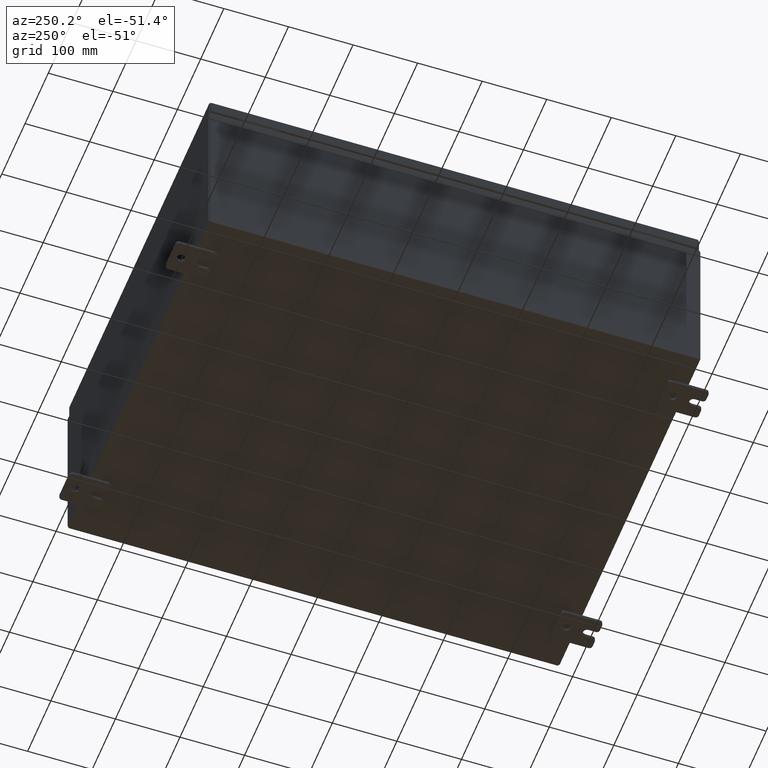
[diagram: clean part render]
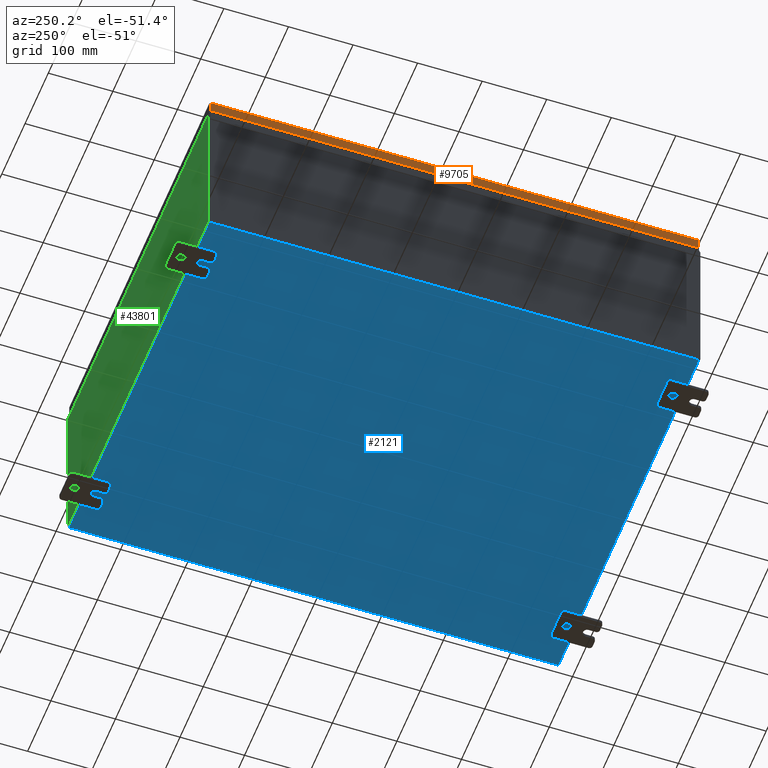
[diagram: same view with three faces highlighted in distinct colors, each labeled with its STEP entity id]
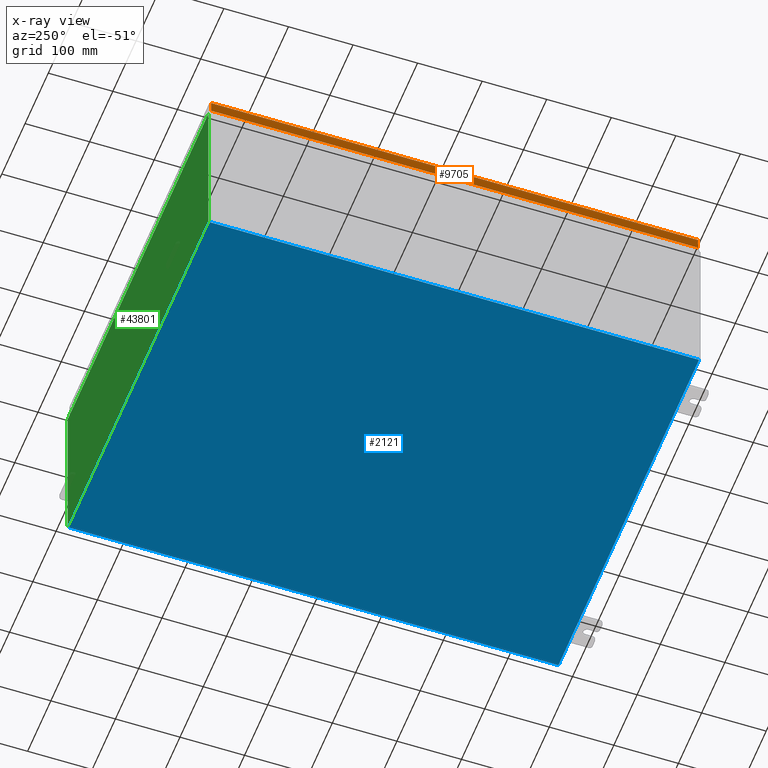
[diagram: x-ray of the same camera — body ghosted, the three highlighted faces saturated]
A machine part, auxiliary view with three faces highlighted in distinct colors.
The next image is the same camera in x-ray (body ghosted, the three faces saturated) — at least one of them is partly hidden behind the body in this view.
Their STEP definitions:

[orange] entity #9705 — the highlighted planar face has unit normal (1, 0, -0).
#177 = VECTOR ( 'NONE', #40609, 39.37007874015748100 ) ;
#3165 = PLANE ( 'NONE',  #16782 ) ;
#3431 = EDGE_CURVE ( 'NONE', #44436, #50850, #26492, .T. ) ;
#3952 = CARTESIAN_POINT ( 'NONE',  ( -11.93750000000000200, 14.84865786437627800, -0.7949999999999960400 ) ) ;
#5570 = EDGE_CURVE ( 'NONE', #30413, #61173, #8512, .T. ) ;
#8116 = CARTESIAN_POINT ( 'NONE',  ( -11.93750000000000000, -4.471249168696428000E-030, 3.648065030670395400E-014 ) ) ;
#8512 = LINE ( 'NONE', #45743, #20098 ) ;
#8625 = FACE_OUTER_BOUND ( 'NONE', #33522, .T. ) ;
#9705 = ADVANCED_FACE ( 'NONE', ( #8625 ), #3165, .F. ) ;
#10651 = VECTOR ( 'NONE', #25397, 39.37007874015748100 ) ;
#13075 = DIRECTION ( 'NONE',  ( -3.034122441942816500E-015, 0.0000000000000000000, -1.000000000000000000 ) ) ;
#16782 = AXIS2_PLACEMENT_3D ( 'NONE', #8116, #42757, #13075 ) ;
#17448 = ORIENTED_EDGE ( 'NONE', *, *, #3431, .F. ) ;
#18426 = CARTESIAN_POINT ( 'NONE',  ( -11.93750000000000000, 14.84865786437627100, -0.08770000000000004200 ) ) ;
#20098 = VECTOR ( 'NONE', #48598, 39.37007874015748100 ) ;
#23702 = VECTOR ( 'NONE', #40237, 39.37007874015748100 ) ;
#25397 = DIRECTION ( 'NONE',  ( -3.034122441942816500E-015, 6.982962677686265900E-015, -1.000000000000000000 ) ) ;
#25707 = ORIENTED_EDGE ( 'NONE', *, *, #56449, .F. ) ;
#26492 = LINE ( 'NONE', #26955, #177 ) ;
#26955 = CARTESIAN_POINT ( 'NONE',  ( -11.93750000000000000, -14.93749999999999500, -0.08770000000000004200 ) ) ;
#30413 = VERTEX_POINT ( 'NONE', #58043 ) ;
#33522 = EDGE_LOOP ( 'NONE', ( #17448, #57094, #56340, #25707 ) ) ;
#33952 = EDGE_CURVE ( 'NONE', #44436, #61173, #38445, .T. ) ;
#35254 = CARTESIAN_POINT ( 'NONE',  ( -11.93750000000000000, 14.84865786437627100, 1.401682739873761500E-013 ) ) ;
#37038 = LINE ( 'NONE', #49928, #10651 ) ;
#38445 = LINE ( 'NONE', #35254, #23702 ) ;
#40237 = DIRECTION ( 'NONE',  ( -3.034122441942816500E-015, 6.982962677686265900E-015, -1.000000000000000000 ) ) ;
#40609 = DIRECTION ( 'NONE',  ( 3.745549041839940000E-031, -1.000000000000000000, -1.104117517615176400E-045 ) ) ;
#42757 = DIRECTION ( 'NONE',  ( 1.000000000000000000, 3.745549041839939100E-031, -3.034122441942816500E-015 ) ) ;
#44436 = VERTEX_POINT ( 'NONE', #18426 ) ;
#45743 = CARTESIAN_POINT ( 'NONE',  ( -11.93750000000000200, -14.93749999999999500, -0.7949999999999997100 ) ) ;
#48598 = DIRECTION ( 'NONE',  ( 4.379057701015054300E-047, 1.000000000000000000, 1.234475243998914400E-016 ) ) ;
#49928 = CARTESIAN_POINT ( 'NONE',  ( -11.93750000000000000, -14.84865786437626400, -0.07469999999999976700 ) ) ;
#50282 = CARTESIAN_POINT ( 'NONE',  ( -11.93750000000000000, -14.84865786437626200, -0.08770000000000007000 ) ) ;
#50850 = VERTEX_POINT ( 'NONE', #50282 ) ;
#56340 = ORIENTED_EDGE ( 'NONE', *, *, #5570, .F. ) ;
#56449 = EDGE_CURVE ( 'NONE', #50850, #30413, #37038, .T. ) ;
#57094 = ORIENTED_EDGE ( 'NONE', *, *, #33952, .T. ) ;
#58043 = CARTESIAN_POINT ( 'NONE',  ( -11.93750000000000200, -14.84865786437626100, -0.7949999999999996000 ) ) ;
#61173 = VERTEX_POINT ( 'NONE', #3952 ) ;

[blue] entity #2121 — the highlighted planar face has unit normal (0, 0, -1).
#66 = DIRECTION ( 'NONE',  ( -1.000000000000000000, -0.0000000000000000000, -0.0000000000000000000 ) ) ;
#253 = PLANE ( 'NONE',  #13633 ) ;
#1280 = CARTESIAN_POINT ( 'NONE',  ( -11.91230000000000500, 14.92530000000000000, -0.07470000000000000300 ) ) ;
#1499 = VERTEX_POINT ( 'NONE', #60617 ) ;
#2121 = ADVANCED_FACE ( 'NONE', ( #41295 ), #253, .T. ) ;
#3544 = CARTESIAN_POINT ( 'NONE',  ( -11.91230000000000500, -14.92530000000000000, -0.07469999999999994700 ) ) ;
#4795 = CARTESIAN_POINT ( 'NONE',  ( -12.00000000000000500, 14.92530000000000000, -0.07470000000000000300 ) ) ;
#5411 = VECTOR ( 'NONE', #49906, 39.37007874015748100 ) ;
#5622 = EDGE_CURVE ( 'NONE', #60234, #1499, #44941, .T. ) ;
#7323 = LINE ( 'NONE', #39048, #60105 ) ;
#8394 = VECTOR ( 'NONE', #66, 39.37007874015748100 ) ;
#8868 = VERTEX_POINT ( 'NONE', #1280 ) ;
#9292 = DIRECTION ( 'NONE',  ( 0.0000000000000000000, 0.0000000000000000000, -1.000000000000000000 ) ) ;
#9369 = DIRECTION ( 'NONE',  ( 1.000000000000000000, 0.0000000000000000000, 0.0000000000000000000 ) ) ;
#10726 = EDGE_CURVE ( 'NONE', #57829, #8868, #30245, .T. ) ;
#11179 = CARTESIAN_POINT ( 'NONE',  ( -11.91230000000000500, -14.92530000000000000, -0.07469999999999994700 ) ) ;
#11469 = ORIENTED_EDGE ( 'NONE', *, *, #5622, .T. ) ;
#13550 = EDGE_CURVE ( 'NONE', #60234, #8868, #21578, .T. ) ;
#13633 = AXIS2_PLACEMENT_3D ( 'NONE', #59656, #9292, #59430 ) ;
#18645 = CARTESIAN_POINT ( 'NONE',  ( 11.91229999999999700, 14.92530000000000000, -0.07470000000000226500 ) ) ;
#21578 = LINE ( 'NONE', #4795, #8394 ) ;
#22733 = EDGE_CURVE ( 'NONE', #57829, #1499, #7323, .T. ) ;
#30245 = LINE ( 'NONE', #11179, #55175 ) ;
#31321 = DIRECTION ( 'NONE',  ( -0.0000000000000000000, 1.000000000000000000, -0.0000000000000000000 ) ) ;
#36593 = ORIENTED_EDGE ( 'NONE', *, *, #13550, .F. ) ;
#39048 = CARTESIAN_POINT ( 'NONE',  ( -12.00000000000000500, -14.92530000000000000, -0.07470000000000000300 ) ) ;
#41295 = FACE_OUTER_BOUND ( 'NONE', #60958, .T. ) ;
#44941 = LINE ( 'NONE', #18645, #5411 ) ;
#49906 = DIRECTION ( 'NONE',  ( -0.0000000000000000000, -1.000000000000000000, 8.208677865577646300E-017 ) ) ;
#55175 = VECTOR ( 'NONE', #31321, 39.37007874015748100 ) ;
#57829 = VERTEX_POINT ( 'NONE', #3544 ) ;
#58881 = ORIENTED_EDGE ( 'NONE', *, *, #22733, .F. ) ;
#59430 = DIRECTION ( 'NONE',  ( -1.000000000000000000, 0.0000000000000000000, -0.0000000000000000000 ) ) ;
#59656 = CARTESIAN_POINT ( 'NONE',  ( 0.0000000000000000000, 0.0000000000000000000, -0.07470000000000000300 ) ) ;
#60105 = VECTOR ( 'NONE', #9369, 39.37007874015748100 ) ;
#60190 = CARTESIAN_POINT ( 'NONE',  ( 11.91229999999999700, 14.92530000000000000, -0.07470000000000226500 ) ) ;
#60234 = VERTEX_POINT ( 'NONE', #60190 ) ;
#60492 = ORIENTED_EDGE ( 'NONE', *, *, #10726, .T. ) ;
#60617 = CARTESIAN_POINT ( 'NONE',  ( 11.91229999999998800, -14.92530000000000000, -0.07470000000000000300 ) ) ;
#60958 = EDGE_LOOP ( 'NONE', ( #58881, #60492, #36593, #11469 ) ) ;

[green] entity #43801 — the highlighted planar face has unit normal (0, -1, 0).
#502 = AXIS2_PLACEMENT_3D ( 'NONE', #4669, #54357, #24585 ) ;
#991 = DIRECTION ( 'NONE',  ( 0.0000000000000000000, 0.0000000000000000000, 1.000000000000000000 ) ) ;
#1578 = VECTOR ( 'NONE', #7923, 39.37007874015748100 ) ;
#1675 = VECTOR ( 'NONE', #4747, 39.37007874015748100 ) ;
#1877 = LINE ( 'NONE', #54943, #51512 ) ;
#2546 = DIRECTION ( 'NONE',  ( 0.0000000000000000000, 0.0000000000000000000, -1.000000000000000000 ) ) ;
#3600 = EDGE_CURVE ( 'NONE', #35940, #48508, #5532, .T. ) ;
#3716 = CARTESIAN_POINT ( 'NONE',  ( 10.88720000000000200, 0.0000000000000000000, 4.874950000000000100 ) ) ;
#3802 = DIRECTION ( 'NONE',  ( -1.000000000000000000, -0.0000000000000000000, -0.0000000000000000000 ) ) ;
#4169 = EDGE_CURVE ( 'NONE', #60819, #36219, #14759, .T. ) ;
#4669 = CARTESIAN_POINT ( 'NONE',  ( 0.0000000000000000000, 0.0000000000000000000, 0.0000000000000000000 ) ) ;
#4747 = DIRECTION ( 'NONE',  ( 0.0000000000000000000, 0.0000000000000000000, -1.000000000000000000 ) ) ;
#5147 = CARTESIAN_POINT ( 'NONE',  ( -10.92454999999999800, 0.0000000000000000000, 4.874950000000000100 ) ) ;
#5532 = LINE ( 'NONE', #30250, #31901 ) ;
#5579 = ORIENTED_EDGE ( 'NONE', *, *, #13074, .T. ) ;
#7697 = EDGE_CURVE ( 'NONE', #46787, #32401, #58113, .T. ) ;
#7923 = DIRECTION ( 'NONE',  ( -4.340572780400004900E-014, 0.0000000000000000000, -1.000000000000000000 ) ) ;
#10139 = CARTESIAN_POINT ( 'NONE',  ( 10.92455000000000000, 0.0000000000000000000, 4.874950000000000100 ) ) ;
#10447 = VECTOR ( 'NONE', #991, 39.37007874015748100 ) ;
#10584 = AXIS2_PLACEMENT_3D ( 'NONE', #25149, #59906, #30104 ) ;
#12085 = VERTEX_POINT ( 'NONE', #10139 ) ;
#12878 = EDGE_CURVE ( 'NONE', #36219, #14489, #43304, .T. ) ;
#13074 = EDGE_CURVE ( 'NONE', #60819, #32401, #22390, .T. ) ;
#13401 = CARTESIAN_POINT ( 'NONE',  ( -11.92530000000000000, 0.0000000000000000000, 4.925300000000000000 ) ) ;
#13778 = VECTOR ( 'NONE', #40958, 39.37007874015748100 ) ;
#13889 = EDGE_CURVE ( 'NONE', #29710, #21583, #53410, .T. ) ;
#14489 = VERTEX_POINT ( 'NONE', #5147 ) ;
#14759 = LINE ( 'NONE', #38733, #1675 ) ;
#15392 = DIRECTION ( 'NONE',  ( 0.0000000000000000000, 0.0000000000000000000, -1.000000000000000000 ) ) ;
#19686 = CARTESIAN_POINT ( 'NONE',  ( 10.88720000000000200, 0.0000000000000000000, 0.0000000000000000000 ) ) ;
#20258 = CIRCLE ( 'NONE', #47533, 0.01867499999999949400 ) ;
#21583 = VERTEX_POINT ( 'NONE', #40369 ) ;
#21618 = EDGE_CURVE ( 'NONE', #14489, #48508, #36839, .T. ) ;
#22390 = LINE ( 'NONE', #26451, #37123 ) ;
#23305 = ORIENTED_EDGE ( 'NONE', *, *, #45842, .T. ) ;
#23845 = LINE ( 'NONE', #13401, #63482 ) ;
#24585 = DIRECTION ( 'NONE',  ( 0.0000000000000000000, -0.0000000000000000000, -1.000000000000000000 ) ) ;
#25149 = CARTESIAN_POINT ( 'NONE',  ( -10.90587500000000000, 0.0000000000000000000, 4.874950000000000100 ) ) ;
#25519 = EDGE_CURVE ( 'NONE', #12085, #46787, #20258, .T. ) ;
#26451 = CARTESIAN_POINT ( 'NONE',  ( -10.88720000000000200, -7.171100983368691200E-016, 4.912300000000000100 ) ) ;
#26590 = CARTESIAN_POINT ( 'NONE',  ( -10.88720000000000000, -0.0000000000000000000, 4.874950000000000100 ) ) ;
#27984 = EDGE_CURVE ( 'NONE', #29710, #12085, #41072, .T. ) ;
#28474 = ORIENTED_EDGE ( 'NONE', *, *, #4169, .F. ) ;
#28491 = LINE ( 'NONE', #48196, #40120 ) ;
#29710 = VERTEX_POINT ( 'NONE', #37747 ) ;
#29985 = ORIENTED_EDGE ( 'NONE', *, *, #30434, .T. ) ;
#30104 = DIRECTION ( 'NONE',  ( 0.0000000000000000000, 0.0000000000000000000, -1.000000000000000000 ) ) ;
#30250 = CARTESIAN_POINT ( 'NONE',  ( -11.92530000000000000, 0.0000000000000000000, 4.925300000000000000 ) ) ;
#30434 = EDGE_CURVE ( 'NONE', #47653, #42007, #28491, .T. ) ;
#30688 = DIRECTION ( 'NONE',  ( 1.000000000000000000, 0.0000000000000000000, 0.0000000000000000000 ) ) ;
#31213 = CARTESIAN_POINT ( 'NONE',  ( 11.92530000000000000, 0.0000000000000000000, -4.925300000000000000 ) ) ;
#31901 = VECTOR ( 'NONE', #30688, 39.37007874015748100 ) ;
#32178 = DIRECTION ( 'NONE',  ( -0.0000000000000000000, 1.000000000000000000, -0.0000000000000000000 ) ) ;
#32401 = VERTEX_POINT ( 'NONE', #39957 ) ;
#33476 = ORIENTED_EDGE ( 'NONE', *, *, #27984, .F. ) ;
#34292 = ORIENTED_EDGE ( 'NONE', *, *, #12878, .F. ) ;
#35940 = VERTEX_POINT ( 'NONE', #58791 ) ;
#35991 = CARTESIAN_POINT ( 'NONE',  ( -11.92530000000000000, 0.0000000000000000000, 4.925300000000000000 ) ) ;
#36219 = VERTEX_POINT ( 'NONE', #26590 ) ;
#36839 = LINE ( 'NONE', #60183, #10447 ) ;
#37029 = ORIENTED_EDGE ( 'NONE', *, *, #21618, .F. ) ;
#37123 = VECTOR ( 'NONE', #61209, 39.37007874015748100 ) ;
#37747 = CARTESIAN_POINT ( 'NONE',  ( 10.92455000000000000, 0.0000000000000000000, 4.925300000000000000 ) ) ;
#38316 = EDGE_CURVE ( 'NONE', #42007, #35940, #23845, .T. ) ;
#38733 = CARTESIAN_POINT ( 'NONE',  ( -10.88720000000000000, -0.0000000000000000000, 0.0000000000000000000 ) ) ;
#39904 = FACE_OUTER_BOUND ( 'NONE', #40832, .T. ) ;
#39957 = CARTESIAN_POINT ( 'NONE',  ( 10.88720000000000200, 0.0000000000000000000, 4.912300000000000100 ) ) ;
#40120 = VECTOR ( 'NONE', #3802, 39.37007874015748100 ) ;
#40369 = CARTESIAN_POINT ( 'NONE',  ( 11.92530000000000000, 0.0000000000000000000, 4.925300000000000000 ) ) ;
#40642 = CARTESIAN_POINT ( 'NONE',  ( -10.88720000000000000, -7.171100983368691200E-016, 4.912300000000000100 ) ) ;
#40832 = EDGE_LOOP ( 'NONE', ( #37029, #34292, #28474, #5579, #48136, #50230, #33476, #44354, #23305, #29985, #46531, #41484 ) ) ;
#40958 = DIRECTION ( 'NONE',  ( 1.000000000000000000, 0.0000000000000000000, 0.0000000000000000000 ) ) ;
#41072 = LINE ( 'NONE', #42576, #1578 ) ;
#41484 = ORIENTED_EDGE ( 'NONE', *, *, #3600, .T. ) ;
#42007 = VERTEX_POINT ( 'NONE', #57512 ) ;
#42576 = CARTESIAN_POINT ( 'NONE',  ( 10.92454999999978900, -0.0000000000000000000, -4.741880436811796300E-013 ) ) ;
#43304 = CIRCLE ( 'NONE', #10584, 0.01867499999999949400 ) ;
#43801 = ADVANCED_FACE ( 'NONE', ( #39904 ), #44294, .F. ) ;
#44294 = PLANE ( 'NONE',  #502 ) ;
#44354 = ORIENTED_EDGE ( 'NONE', *, *, #13889, .T. ) ;
#44823 = VECTOR ( 'NONE', #54054, 39.37007874015748100 ) ;
#45842 = EDGE_CURVE ( 'NONE', #21583, #47653, #1877, .T. ) ;
#46531 = ORIENTED_EDGE ( 'NONE', *, *, #38316, .T. ) ;
#46787 = VERTEX_POINT ( 'NONE', #3716 ) ;
#47533 = AXIS2_PLACEMENT_3D ( 'NONE', #61952, #32178, #2546 ) ;
#47653 = VERTEX_POINT ( 'NONE', #31213 ) ;
#48095 = DIRECTION ( 'NONE',  ( -0.0000000000000000000, -0.0000000000000000000, 1.000000000000000000 ) ) ;
#48136 = ORIENTED_EDGE ( 'NONE', *, *, #7697, .F. ) ;
#48196 = CARTESIAN_POINT ( 'NONE',  ( -11.92530000000000000, 0.0000000000000000000, -4.925300000000000000 ) ) ;
#48508 = VERTEX_POINT ( 'NONE', #56210 ) ;
#50230 = ORIENTED_EDGE ( 'NONE', *, *, #25519, .F. ) ;
#51512 = VECTOR ( 'NONE', #15392, 39.37007874015748100 ) ;
#53410 = LINE ( 'NONE', #35991, #13778 ) ;
#54054 = DIRECTION ( 'NONE',  ( 0.0000000000000000000, 0.0000000000000000000, 1.000000000000000000 ) ) ;
#54357 = DIRECTION ( 'NONE',  ( 0.0000000000000000000, -1.000000000000000000, 0.0000000000000000000 ) ) ;
#54943 = CARTESIAN_POINT ( 'NONE',  ( 11.92530000000000000, 0.0000000000000000000, 4.925300000000000000 ) ) ;
#56210 = CARTESIAN_POINT ( 'NONE',  ( -10.92454999999999800, 0.0000000000000000000, 4.925300000000000000 ) ) ;
#57512 = CARTESIAN_POINT ( 'NONE',  ( -11.92530000000000000, 0.0000000000000000000, -4.925300000000000000 ) ) ;
#58113 = LINE ( 'NONE', #19686, #44823 ) ;
#58791 = CARTESIAN_POINT ( 'NONE',  ( -11.92530000000000000, 0.0000000000000000000, 4.925300000000000000 ) ) ;
#59906 = DIRECTION ( 'NONE',  ( -0.0000000000000000000, 1.000000000000000000, -0.0000000000000000000 ) ) ;
#60183 = CARTESIAN_POINT ( 'NONE',  ( -10.92454999999999800, -0.0000000000000000000, 0.0000000000000000000 ) ) ;
#60819 = VERTEX_POINT ( 'NONE', #40642 ) ;
#61209 = DIRECTION ( 'NONE',  ( 1.000000000000000000, 0.0000000000000000000, 0.0000000000000000000 ) ) ;
#61952 = CARTESIAN_POINT ( 'NONE',  ( 10.90587500000000200, 0.0000000000000000000, 4.874950000000000100 ) ) ;
#63482 = VECTOR ( 'NONE', #48095, 39.37007874015748100 ) ;